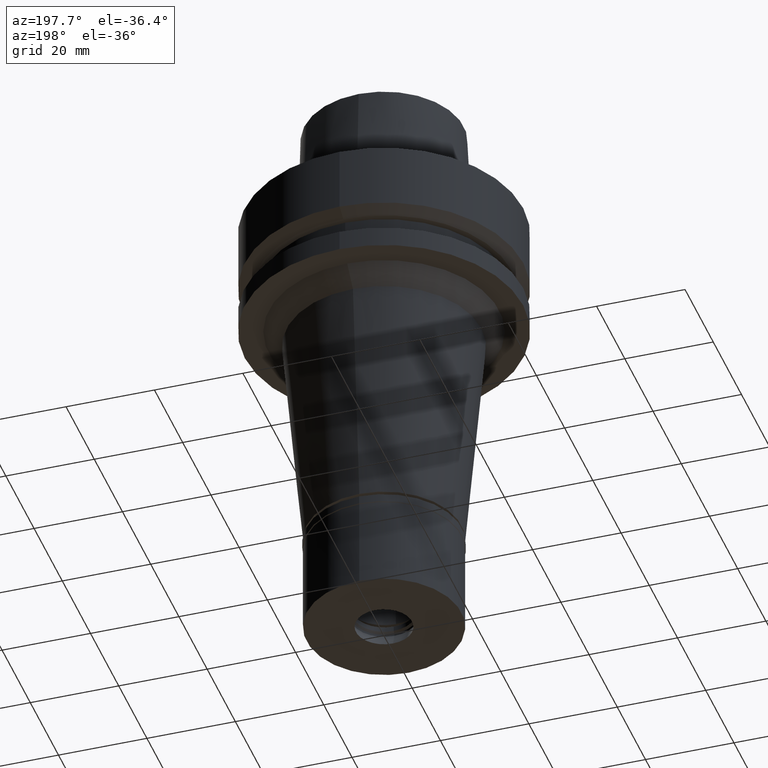
[diagram: clean part render]
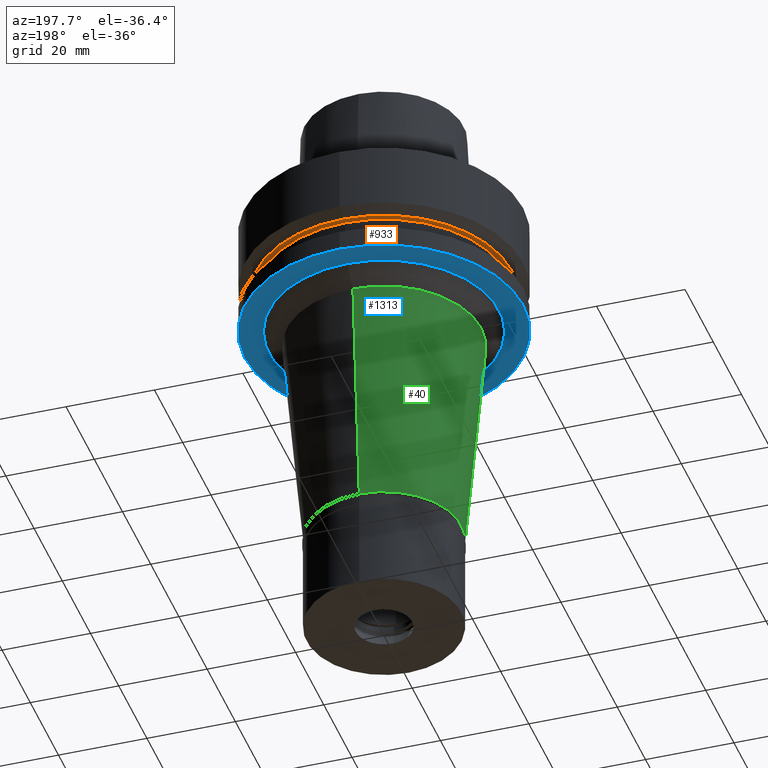
[diagram: same view with three faces highlighted in distinct colors, each labeled with its STEP entity id]
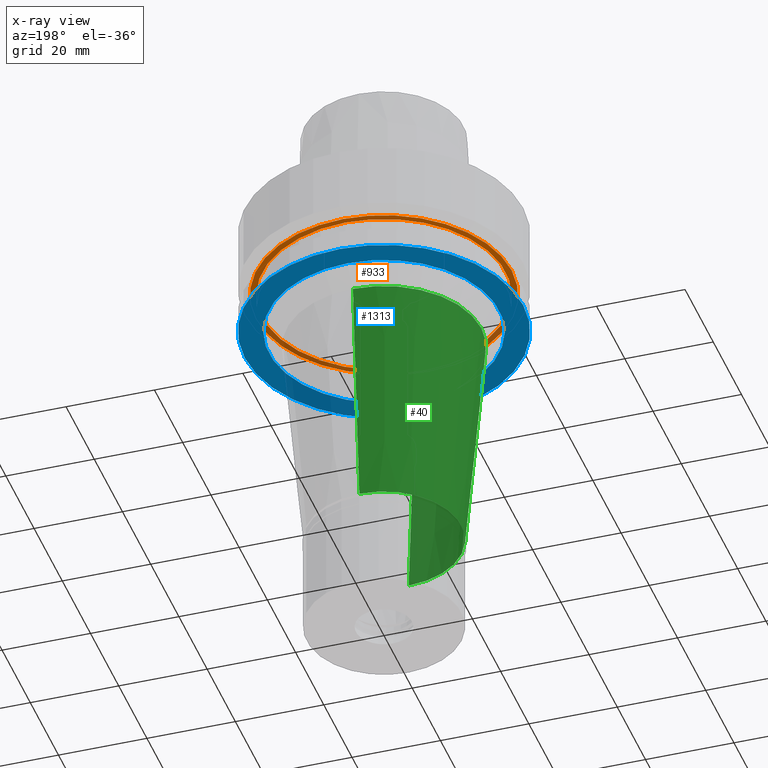
[diagram: x-ray of the same camera — body ghosted, the three highlighted faces saturated]
A machine part, auxiliary view with three faces highlighted in distinct colors.
The next image is the same camera in x-ray (body ghosted, the three faces saturated) — at least one of them is partly hidden behind the body in this view.
Their STEP definitions:

[orange] entity #933 — the highlighted planar face has unit normal (0, 0, 1).
#97 = DIRECTION ( 'NONE',  ( 0.0000000000000000000, 1.000000000000000000, 0.0000000000000000000 ) ) ;
#136 = DIRECTION ( 'NONE',  ( 0.0000000000000000000, -1.000000000000000000, 0.0000000000000000000 ) ) ;
#188 = EDGE_CURVE ( 'NONE', #1527, #626, #566, .T. ) ;
#199 = EDGE_LOOP ( 'NONE', ( #2846, #1802 ) ) ;
#354 = CARTESIAN_POINT ( 'NONE',  ( 0.0000000000000000000, 0.0000000000000000000, -16.12500000000000000 ) ) ;
#401 = PLANE ( 'NONE',  #1003 ) ;
#446 = EDGE_CURVE ( 'NONE', #2660, #1660, #760, .T. ) ;
#566 = CIRCLE ( 'NONE', #805, 28.89759526419000224 ) ;
#621 = CARTESIAN_POINT ( 'NONE',  ( 0.0000000000000000000, 27.50000000000000000, -16.12500000000000000 ) ) ;
#626 = VERTEX_POINT ( 'NONE', #2023 ) ;
#675 = CARTESIAN_POINT ( 'NONE',  ( 0.0000000000000000000, 0.0000000000000000000, -16.12500000000000000 ) ) ;
#760 = CIRCLE ( 'NONE', #2652, 27.50000000000000000 ) ;
#771 = CARTESIAN_POINT ( 'NONE',  ( 0.0000000000000000000, 0.0000000000000000000, -16.12500000000000000 ) ) ;
#784 = FACE_OUTER_BOUND ( 'NONE', #1812, .T. ) ;
#805 = AXIS2_PLACEMENT_3D ( 'NONE', #675, #903, #1831 ) ;
#903 = DIRECTION ( 'NONE',  ( 0.0000000000000000000, 0.0000000000000000000, 1.000000000000000000 ) ) ;
#933 = ADVANCED_FACE ( 'NONE', ( #784, #2414 ), #401, .F. ) ;
#1003 = AXIS2_PLACEMENT_3D ( 'NONE', #2587, #2396, #2822 ) ;
#1040 = DIRECTION ( 'NONE',  ( 0.0000000000000000000, -1.000000000000000000, 0.0000000000000000000 ) ) ;
#1239 = ORIENTED_EDGE ( 'NONE', *, *, #2501, .F. ) ;
#1475 = DIRECTION ( 'NONE',  ( 0.0000000000000000000, 0.0000000000000000000, 1.000000000000000000 ) ) ;
#1490 = CIRCLE ( 'NONE', #2172, 27.50000000000000000 ) ;
#1527 = VERTEX_POINT ( 'NONE', #1757 ) ;
#1583 = CIRCLE ( 'NONE', #1903, 28.89759526419000224 ) ;
#1660 = VERTEX_POINT ( 'NONE', #2697 ) ;
#1757 = CARTESIAN_POINT ( 'NONE',  ( 0.0000000000000000000, 28.89759526419000224, -16.12500000000000000 ) ) ;
#1802 = ORIENTED_EDGE ( 'NONE', *, *, #1901, .F. ) ;
#1812 = EDGE_LOOP ( 'NONE', ( #2772, #1239 ) ) ;
#1831 = DIRECTION ( 'NONE',  ( 0.0000000000000000000, 1.000000000000000000, 0.0000000000000000000 ) ) ;
#1901 = EDGE_CURVE ( 'NONE', #1660, #2660, #1490, .T. ) ;
#1903 = AXIS2_PLACEMENT_3D ( 'NONE', #354, #1475, #1040 ) ;
#2023 = CARTESIAN_POINT ( 'NONE',  ( 0.0000000000000000000, -28.89759526419000224, -16.12500000000000000 ) ) ;
#2172 = AXIS2_PLACEMENT_3D ( 'NONE', #2771, #2277, #136 ) ;
#2277 = DIRECTION ( 'NONE',  ( 0.0000000000000000000, 0.0000000000000000000, -1.000000000000000000 ) ) ;
#2396 = DIRECTION ( 'NONE',  ( 0.0000000000000000000, 0.0000000000000000000, 1.000000000000000000 ) ) ;
#2414 = FACE_BOUND ( 'NONE', #199, .T. ) ;
#2501 = EDGE_CURVE ( 'NONE', #626, #1527, #1583, .T. ) ;
#2587 = CARTESIAN_POINT ( 'NONE',  ( 0.0000000000000000000, 0.0000000000000000000, -16.12500000000000000 ) ) ;
#2652 = AXIS2_PLACEMENT_3D ( 'NONE', #771, #2688, #97 ) ;
#2660 = VERTEX_POINT ( 'NONE', #621 ) ;
#2688 = DIRECTION ( 'NONE',  ( 0.0000000000000000000, 0.0000000000000000000, -1.000000000000000000 ) ) ;
#2697 = CARTESIAN_POINT ( 'NONE',  ( 0.0000000000000000000, -27.50000000000000000, -16.12500000000000000 ) ) ;
#2771 = CARTESIAN_POINT ( 'NONE',  ( 0.0000000000000000000, 0.0000000000000000000, -16.12500000000000000 ) ) ;
#2772 = ORIENTED_EDGE ( 'NONE', *, *, #188, .F. ) ;
#2822 = DIRECTION ( 'NONE',  ( 1.000000000000000000, 0.0000000000000000000, 0.0000000000000000000 ) ) ;
#2846 = ORIENTED_EDGE ( 'NONE', *, *, #446, .F. ) ;

[blue] entity #1313 — the highlighted planar face has unit normal (0, 0, 1).
#23 = ORIENTED_EDGE ( 'NONE', *, *, #1118, .F. ) ;
#104 = VERTEX_POINT ( 'NONE', #2483 ) ;
#164 = EDGE_CURVE ( 'NONE', #806, #718, #520, .T. ) ;
#168 = EDGE_LOOP ( 'NONE', ( #819, #2516 ) ) ;
#234 = AXIS2_PLACEMENT_3D ( 'NONE', #1084, #2186, #2606 ) ;
#325 = FACE_BOUND ( 'NONE', #2636, .T. ) ;
#485 = CARTESIAN_POINT ( 'NONE',  ( 0.0000000000000000000, 31.50000000000000000, -26.00000000000000000 ) ) ;
#495 = DIRECTION ( 'NONE',  ( 0.0000000000000000000, 0.0000000000000000000, -1.000000000000000000 ) ) ;
#520 = CIRCLE ( 'NONE', #2048, 31.50000000000000000 ) ;
#529 = DIRECTION ( 'NONE',  ( 0.0000000000000000000, 0.0000000000000000000, 1.000000000000000000 ) ) ;
#718 = VERTEX_POINT ( 'NONE', #485 ) ;
#775 = CARTESIAN_POINT ( 'NONE',  ( 0.0000000000000000000, 26.02316390428999782, -26.00000000000000000 ) ) ;
#806 = VERTEX_POINT ( 'NONE', #820 ) ;
#819 = ORIENTED_EDGE ( 'NONE', *, *, #2770, .F. ) ;
#820 = CARTESIAN_POINT ( 'NONE',  ( 0.0000000000000000000, -31.50000000000000000, -26.00000000000000000 ) ) ;
#884 = VERTEX_POINT ( 'NONE', #775 ) ;
#916 = DIRECTION ( 'NONE',  ( 0.0000000000000000000, 0.0000000000000000000, 1.000000000000000000 ) ) ;
#1052 = AXIS2_PLACEMENT_3D ( 'NONE', #2527, #529, #2556 ) ;
#1084 = CARTESIAN_POINT ( 'NONE',  ( 0.0000000000000000000, 0.0000000000000000000, -26.00000000000000000 ) ) ;
#1118 = EDGE_CURVE ( 'NONE', #104, #884, #1426, .T. ) ;
#1137 = DIRECTION ( 'NONE',  ( 0.0000000000000000000, -1.000000000000000000, 0.0000000000000000000 ) ) ;
#1221 = EDGE_CURVE ( 'NONE', #884, #104, #2842, .T. ) ;
#1313 = ADVANCED_FACE ( 'NONE', ( #2541, #325 ), #1884, .F. ) ;
#1396 = DIRECTION ( 'NONE',  ( 0.0000000000000000000, 1.000000000000000000, 0.0000000000000000000 ) ) ;
#1426 = CIRCLE ( 'NONE', #2107, 26.02316390428999782 ) ;
#1793 = CARTESIAN_POINT ( 'NONE',  ( 0.0000000000000000000, 0.0000000000000000000, -26.00000000000000000 ) ) ;
#1822 = CIRCLE ( 'NONE', #234, 31.50000000000000000 ) ;
#1884 = PLANE ( 'NONE',  #1052 ) ;
#2008 = AXIS2_PLACEMENT_3D ( 'NONE', #1793, #495, #1396 ) ;
#2048 = AXIS2_PLACEMENT_3D ( 'NONE', #2465, #916, #1137 ) ;
#2052 = CARTESIAN_POINT ( 'NONE',  ( 0.0000000000000000000, 0.0000000000000000000, -26.00000000000000000 ) ) ;
#2107 = AXIS2_PLACEMENT_3D ( 'NONE', #2052, #2663, #2498 ) ;
#2186 = DIRECTION ( 'NONE',  ( 0.0000000000000000000, 0.0000000000000000000, 1.000000000000000000 ) ) ;
#2465 = CARTESIAN_POINT ( 'NONE',  ( 0.0000000000000000000, 0.0000000000000000000, -26.00000000000000000 ) ) ;
#2483 = CARTESIAN_POINT ( 'NONE',  ( 0.0000000000000000000, -26.02316390428999782, -26.00000000000000000 ) ) ;
#2498 = DIRECTION ( 'NONE',  ( 0.0000000000000000000, -1.000000000000000000, 0.0000000000000000000 ) ) ;
#2516 = ORIENTED_EDGE ( 'NONE', *, *, #164, .F. ) ;
#2527 = CARTESIAN_POINT ( 'NONE',  ( 0.0000000000000000000, 0.0000000000000000000, -26.00000000000000000 ) ) ;
#2541 = FACE_OUTER_BOUND ( 'NONE', #168, .T. ) ;
#2556 = DIRECTION ( 'NONE',  ( 1.000000000000000000, 0.0000000000000000000, 0.0000000000000000000 ) ) ;
#2606 = DIRECTION ( 'NONE',  ( 0.0000000000000000000, 1.000000000000000000, 0.0000000000000000000 ) ) ;
#2636 = EDGE_LOOP ( 'NONE', ( #2687, #23 ) ) ;
#2663 = DIRECTION ( 'NONE',  ( 0.0000000000000000000, 0.0000000000000000000, -1.000000000000000000 ) ) ;
#2687 = ORIENTED_EDGE ( 'NONE', *, *, #1221, .F. ) ;
#2770 = EDGE_CURVE ( 'NONE', #718, #806, #1822, .T. ) ;
#2842 = CIRCLE ( 'NONE', #2008, 26.02316390428999782 ) ;

[green] entity #40 — the highlighted conical surface has half-angle 5 deg.
#22 = VERTEX_POINT ( 'NONE', #53 ) ;
#28 = ORIENTED_EDGE ( 'NONE', *, *, #869, .T. ) ;
#35 = ORIENTED_EDGE ( 'NONE', *, *, #915, .F. ) ;
#40 = ADVANCED_FACE ( 'NONE', ( #71 ), #2603, .T. ) ;
#51 = CARTESIAN_POINT ( 'NONE',  ( 0.0000000000000000000, 17.50000000000000000, -81.69999999999998863 ) ) ;
#53 = CARTESIAN_POINT ( 'NONE',  ( 0.0000000000000000000, 22.02316390428999782, -30.00000000000000000 ) ) ;
#71 = FACE_OUTER_BOUND ( 'NONE', #1121, .T. ) ;
#143 = CARTESIAN_POINT ( 'NONE',  ( 0.0000000000000000000, 0.0000000000000000000, -81.69999999999998863 ) ) ;
#247 = CIRCLE ( 'NONE', #618, 17.50000000000000000 ) ;
#399 = CARTESIAN_POINT ( 'NONE',  ( 0.0000000000000000000, -17.50000000000000000, -81.69999999999998863 ) ) ;
#453 = VERTEX_POINT ( 'NONE', #399 ) ;
#545 = DIRECTION ( 'NONE',  ( 0.0000000000000000000, 0.08715574274764407992, -0.9961946980917467664 ) ) ;
#555 = EDGE_CURVE ( 'NONE', #2153, #22, #570, .T. ) ;
#570 = CIRCLE ( 'NONE', #2189, 22.02316390428999782 ) ;
#618 = AXIS2_PLACEMENT_3D ( 'NONE', #143, #2356, #1039 ) ;
#674 = VERTEX_POINT ( 'NONE', #51 ) ;
#750 = LINE ( 'NONE', #1252, #1603 ) ;
#816 = DIRECTION ( 'NONE',  ( 0.0000000000000000000, -0.08715574274764407992, -0.9961946980917467664 ) ) ;
#869 = EDGE_CURVE ( 'NONE', #674, #453, #247, .T. ) ;
#915 = EDGE_CURVE ( 'NONE', #2153, #453, #2531, .T. ) ;
#949 = AXIS2_PLACEMENT_3D ( 'NONE', #1837, #2305, #1874 ) ;
#1039 = DIRECTION ( 'NONE',  ( 0.0000000000000000000, 1.000000000000000000, 0.0000000000000000000 ) ) ;
#1121 = EDGE_LOOP ( 'NONE', ( #28, #35, #1467, #1423 ) ) ;
#1252 = CARTESIAN_POINT ( 'NONE',  ( 0.0000000000000000000, 22.02316390428999782, -30.00000000000000000 ) ) ;
#1290 = DIRECTION ( 'NONE',  ( 0.0000000000000000000, 0.0000000000000000000, -1.000000000000000000 ) ) ;
#1298 = EDGE_CURVE ( 'NONE', #22, #674, #750, .T. ) ;
#1423 = ORIENTED_EDGE ( 'NONE', *, *, #1298, .T. ) ;
#1467 = ORIENTED_EDGE ( 'NONE', *, *, #555, .T. ) ;
#1603 = VECTOR ( 'NONE', #816, 1000.000000000000114 ) ;
#1674 = CARTESIAN_POINT ( 'NONE',  ( 0.0000000000000000000, -22.02316390428999782, -30.00000000000000000 ) ) ;
#1743 = DIRECTION ( 'NONE',  ( 0.0000000000000000000, -1.000000000000000000, 0.0000000000000000000 ) ) ;
#1795 = CARTESIAN_POINT ( 'NONE',  ( 0.0000000000000000000, -22.02316390428999782, -30.00000000000000000 ) ) ;
#1837 = CARTESIAN_POINT ( 'NONE',  ( 0.0000000000000000000, 0.0000000000000000000, -55.84999999999999432 ) ) ;
#1874 = DIRECTION ( 'NONE',  ( 0.0000000000000000000, 1.000000000000000000, 0.0000000000000000000 ) ) ;
#1915 = CARTESIAN_POINT ( 'NONE',  ( 0.0000000000000000000, 0.0000000000000000000, -30.00000000000000000 ) ) ;
#2153 = VERTEX_POINT ( 'NONE', #1795 ) ;
#2189 = AXIS2_PLACEMENT_3D ( 'NONE', #1915, #1290, #1743 ) ;
#2305 = DIRECTION ( 'NONE',  ( 0.0000000000000000000, 0.0000000000000000000, 1.000000000000000000 ) ) ;
#2356 = DIRECTION ( 'NONE',  ( 0.0000000000000000000, 0.0000000000000000000, 1.000000000000000000 ) ) ;
#2531 = LINE ( 'NONE', #1674, #2609 ) ;
#2603 = CONICAL_SURFACE ( 'NONE', #949, 19.76158195214999935, 0.08726646259969973729 ) ;
#2609 = VECTOR ( 'NONE', #545, 1000.000000000000114 ) ;